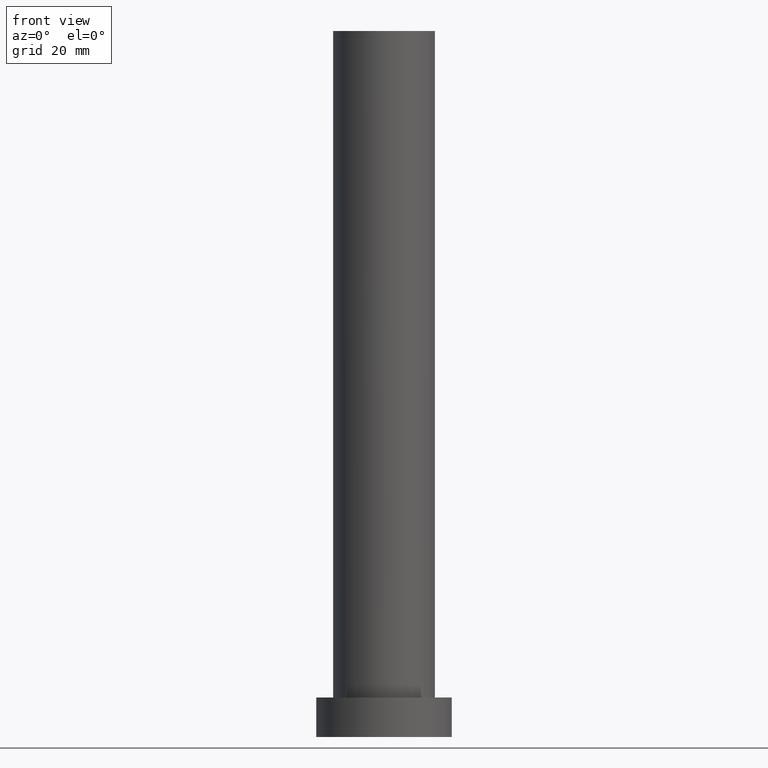
[diagram: clean part render]
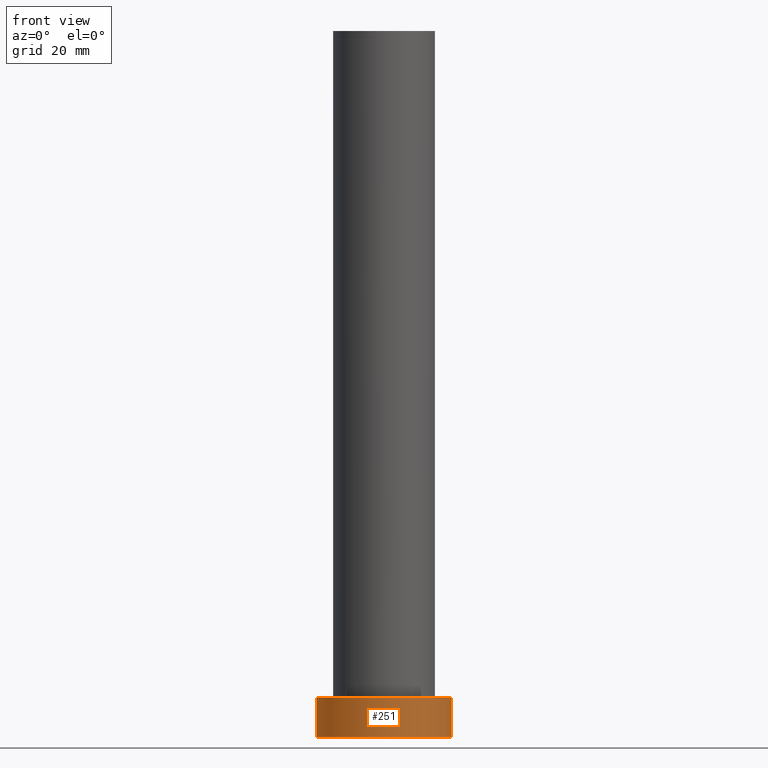
[diagram: same view with one face highlighted and labeled with its STEP entity id]
A machine part, front view. The second image highlights one B-rep face of the part: STEP entity #251.
In plain terms, the highlighted cylindrical surface (partial cylindrical patch) has radius 12 mm, axis along (-0, -0, -1).
Its self-contained STEP definition (entity closure, byte-faithful):
#7 = DIRECTION ( 'NONE',  ( -0.000000000000000000, -0.000000000000000000, -1.000000000000000000 ) ) ;
#10 = ORIENTED_EDGE ( 'NONE', *, *, #68, .T. ) ;
#15 = CARTESIAN_POINT ( 'NONE',  ( 0.000000000000000000, 0.000000000000000000, 7.000000000000000000 ) ) ;
#18 = AXIS2_PLACEMENT_3D ( 'NONE', #48, #7, #174 ) ;
#34 = DIRECTION ( 'NONE',  ( 1.000000000000000000, 0.000000000000000000, 0.000000000000000000 ) ) ;
#36 = DIRECTION ( 'NONE',  ( 1.000000000000000000, 0.000000000000000000, 0.000000000000000000 ) ) ;
#38 = CIRCLE ( 'NONE', #179, 12.00000000000000178 ) ;
#40 = LINE ( 'NONE', #53, #157 ) ;
#48 = CARTESIAN_POINT ( 'NONE',  ( 0.000000000000000000, 0.000000000000000000, 7.000000000000000000 ) ) ;
#49 = VERTEX_POINT ( 'NONE', #122 ) ;
#53 = CARTESIAN_POINT ( 'NONE',  ( 12.00000000000000178, 1.469576158976824144E-15, 7.000000000000000000 ) ) ;
#68 = EDGE_CURVE ( 'NONE', #134, #95, #204, .T. ) ;
#81 = ORIENTED_EDGE ( 'NONE', *, *, #118, .T. ) ;
#88 = FACE_OUTER_BOUND ( 'NONE', #169, .T. ) ;
#95 = VERTEX_POINT ( 'NONE', #214 ) ;
#112 = EDGE_CURVE ( 'NONE', #49, #240, #40, .T. ) ;
#118 = EDGE_CURVE ( 'NONE', #95, #240, #234, .T. ) ;
#120 = CARTESIAN_POINT ( 'NONE',  ( 12.00000000000000178, 1.469576158976824144E-15, 0.000000000000000000 ) ) ;
#122 = CARTESIAN_POINT ( 'NONE',  ( 12.00000000000000178, 1.469576158976824144E-15, 7.000000000000000000 ) ) ;
#134 = VERTEX_POINT ( 'NONE', #203 ) ;
#135 = EDGE_CURVE ( 'NONE', #134, #49, #38, .T. ) ;
#136 = AXIS2_PLACEMENT_3D ( 'NONE', #143, #212, #34 ) ;
#143 = CARTESIAN_POINT ( 'NONE',  ( 0.000000000000000000, 0.000000000000000000, 0.000000000000000000 ) ) ;
#145 = DIRECTION ( 'NONE',  ( 0.000000000000000000, 0.000000000000000000, 1.000000000000000000 ) ) ;
#147 = DIRECTION ( 'NONE',  ( -0.000000000000000000, -0.000000000000000000, -1.000000000000000000 ) ) ;
#157 = VECTOR ( 'NONE', #224, 1000.000000000000000 ) ;
#169 = EDGE_LOOP ( 'NONE', ( #182, #177, #10, #81 ) ) ;
#174 = DIRECTION ( 'NONE',  ( -1.000000000000000000, 0.000000000000000000, 0.000000000000000000 ) ) ;
#177 = ORIENTED_EDGE ( 'NONE', *, *, #135, .F. ) ;
#179 = AXIS2_PLACEMENT_3D ( 'NONE', #15, #145, #36 ) ;
#182 = ORIENTED_EDGE ( 'NONE', *, *, #112, .F. ) ;
#189 = CARTESIAN_POINT ( 'NONE',  ( -12.00000000000000178, 0.000000000000000000, 7.000000000000000000 ) ) ;
#199 = CYLINDRICAL_SURFACE ( 'NONE', #18, 12.00000000000000178 ) ;
#203 = CARTESIAN_POINT ( 'NONE',  ( -12.00000000000000178, 0.000000000000000000, 7.000000000000000000 ) ) ;
#204 = LINE ( 'NONE', #189, #207 ) ;
#207 = VECTOR ( 'NONE', #147, 1000.000000000000000 ) ;
#212 = DIRECTION ( 'NONE',  ( 0.000000000000000000, 0.000000000000000000, 1.000000000000000000 ) ) ;
#214 = CARTESIAN_POINT ( 'NONE',  ( -12.00000000000000178, 0.000000000000000000, 0.000000000000000000 ) ) ;
#224 = DIRECTION ( 'NONE',  ( -0.000000000000000000, -0.000000000000000000, -1.000000000000000000 ) ) ;
#234 = CIRCLE ( 'NONE', #136, 12.00000000000000178 ) ;
#240 = VERTEX_POINT ( 'NONE', #120 ) ;
#251 = ADVANCED_FACE ( 'NONE', ( #88 ), #199, .T. ) ;